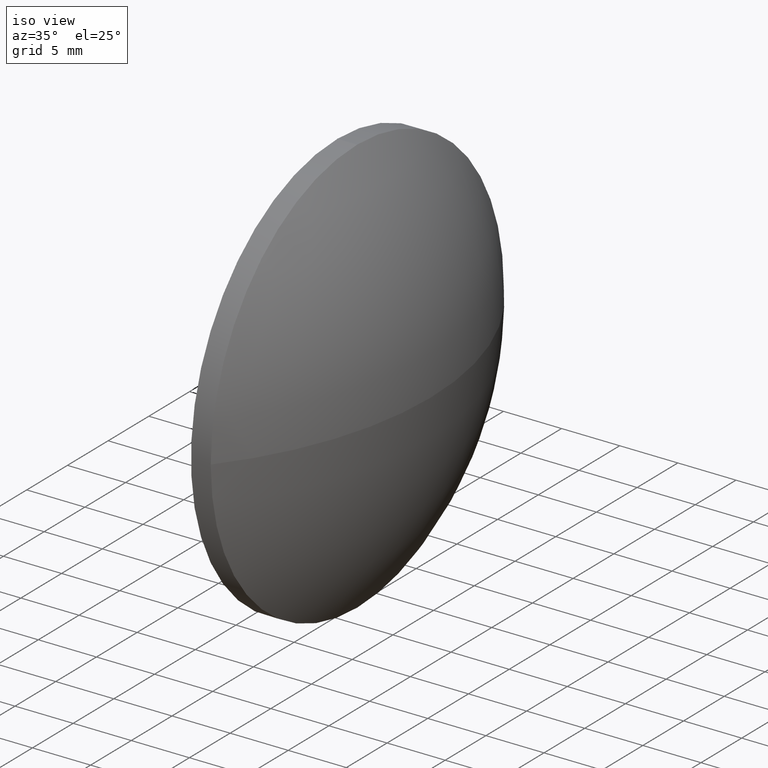
[diagram: clean part render]
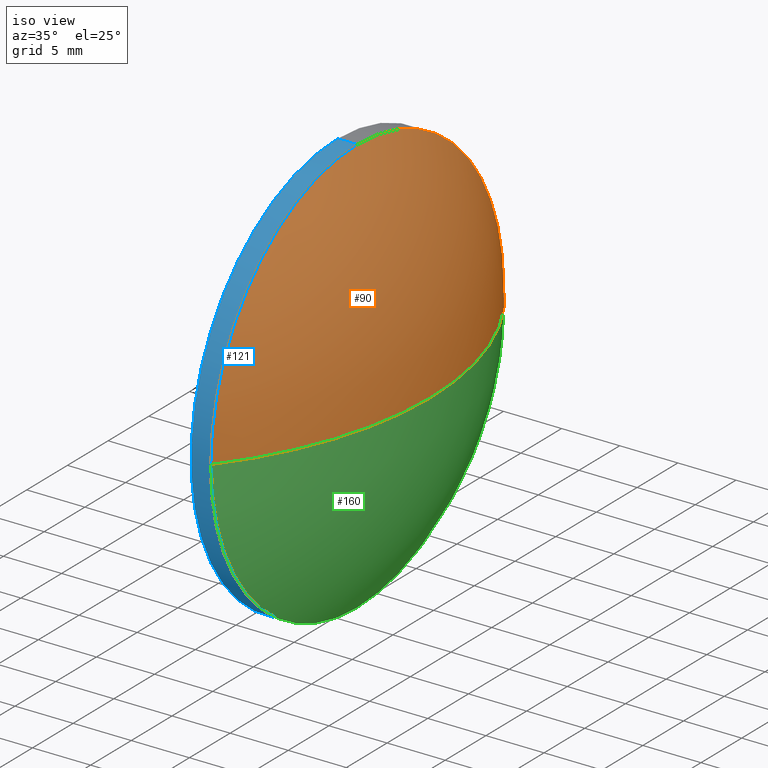
[diagram: same view with three faces highlighted in distinct colors, each labeled with its STEP entity id]
A machine part, iso view with three faces highlighted in distinct colors.
Their STEP definitions:

[orange] entity #90 — the highlighted spherical surface has radius 28.8643 mm.
#2 = DIRECTION ( 'NONE',  ( -0.0000000000000000000, 0.0000000000000000000, 1.000000000000000000 ) ) ;
#3 = EDGE_CURVE ( 'NONE', #108, #89, #120, .T. ) ;
#15 = EDGE_LOOP ( 'NONE', ( #45, #71, #43, #56 ) ) ;
#18 = CARTESIAN_POINT ( 'NONE',  ( 358.7243582634265500, 55.92268159127585400, 0.0000000000000000000 ) ) ;
#20 = CARTESIAN_POINT ( 'NONE',  ( 381.2886439777123000, 55.92268159127587500, 0.0000000000000000000 ) ) ;
#22 = CARTESIAN_POINT ( 'NONE',  ( 381.2886439777123000, 55.92268159127587500, 0.0000000000000000000 ) ) ;
#24 = EDGE_CURVE ( 'NONE', #108, #92, #122, .T. ) ;
#29 = EDGE_CURVE ( 'NONE', #92, #81, #62, .T. ) ;
#30 = DIRECTION ( 'NONE',  ( -0.0000000000000000000, 0.0000000000000000000, -1.000000000000000000 ) ) ;
#31 = DIRECTION ( 'NONE',  ( -1.000000000000000000, -0.0000000000000000000, -0.0000000000000000000 ) ) ;
#33 = CARTESIAN_POINT ( 'NONE',  ( 381.2886439777123000, 55.92268159127587500, 18.00000000000000400 ) ) ;
#36 = DIRECTION ( 'NONE',  ( 0.0000000000000000000, 1.000000000000000000, 0.0000000000000000000 ) ) ;
#42 = AXIS2_PLACEMENT_3D ( 'NONE', #69, #2, #112 ) ;
#43 = ORIENTED_EDGE ( 'NONE', *, *, #87, .F. ) ;
#45 = ORIENTED_EDGE ( 'NONE', *, *, #24, .F. ) ;
#46 = AXIS2_PLACEMENT_3D ( 'NONE', #22, #31, #74 ) ;
#52 = DIRECTION ( 'NONE',  ( 0.0000000000000000000, 0.0000000000000000000, 1.000000000000000000 ) ) ;
#56 = ORIENTED_EDGE ( 'NONE', *, *, #29, .F. ) ;
#62 = CIRCLE ( 'NONE', #67, 18.00000000000000400 ) ;
#67 = AXIS2_PLACEMENT_3D ( 'NONE', #20, #164, #52 ) ;
#68 = CARTESIAN_POINT ( 'NONE',  ( 381.2886439777123000, 37.92268159127586800, -2.204364238465233900E-015 ) ) ;
#69 = CARTESIAN_POINT ( 'NONE',  ( 358.7243582634265500, 55.92268159127585400, 0.0000000000000000000 ) ) ;
#71 = ORIENTED_EDGE ( 'NONE', *, *, #3, .T. ) ;
#74 = DIRECTION ( 'NONE',  ( 0.0000000000000000000, 0.0000000000000000000, 1.000000000000000000 ) ) ;
#80 = DIRECTION ( 'NONE',  ( 0.0000000000000000000, 1.224646799147353200E-016, -1.000000000000000000 ) ) ;
#81 = VERTEX_POINT ( 'NONE', #33 ) ;
#84 = DIRECTION ( 'NONE',  ( 0.0000000000000000000, 1.000000000000000000, 1.224646799147353500E-016 ) ) ;
#87 = EDGE_CURVE ( 'NONE', #81, #89, #105, .T. ) ;
#89 = VERTEX_POINT ( 'NONE', #142 ) ;
#90 = ADVANCED_FACE ( 'NONE', ( #95 ), #144, .T. ) ;
#92 = VERTEX_POINT ( 'NONE', #68 ) ;
#95 = FACE_OUTER_BOUND ( 'NONE', #15, .T. ) ;
#99 = AXIS2_PLACEMENT_3D ( 'NONE', #101, #30, #36 ) ;
#101 = CARTESIAN_POINT ( 'NONE',  ( 358.7243582634265500, 55.92268159127585400, 0.0000000000000000000 ) ) ;
#105 = CIRCLE ( 'NONE', #46, 18.00000000000000400 ) ;
#108 = VERTEX_POINT ( 'NONE', #154 ) ;
#112 = DIRECTION ( 'NONE',  ( 1.000000000000000000, 0.0000000000000000000, 0.0000000000000000000 ) ) ;
#120 = CIRCLE ( 'NONE', #42, 28.86428571428573200 ) ;
#122 = CIRCLE ( 'NONE', #177, 28.86428571428573900 ) ;
#142 = CARTESIAN_POINT ( 'NONE',  ( 381.2886439777123000, 73.92268159127586100, 0.0000000000000000000 ) ) ;
#144 = SPHERICAL_SURFACE ( 'NONE', #99, 28.86428571428574600 ) ;
#154 = CARTESIAN_POINT ( 'NONE',  ( 387.5886439777122500, 55.92268159127585400, 0.0000000000000000000 ) ) ;
#164 = DIRECTION ( 'NONE',  ( -1.000000000000000000, -0.0000000000000000000, -0.0000000000000000000 ) ) ;
#177 = AXIS2_PLACEMENT_3D ( 'NONE', #18, #80, #84 ) ;

[blue] entity #121 — the highlighted cylindrical surface (partial cylindrical patch) has radius 18 mm, axis along (-1, -0, -0).
#8 = CARTESIAN_POINT ( 'NONE',  ( 379.5886439777123100, 55.92268159127587500, 18.00000000000000400 ) ) ;
#10 = ORIENTED_EDGE ( 'NONE', *, *, #29, .T. ) ;
#11 = EDGE_CURVE ( 'NONE', #49, #92, #23, .T. ) ;
#13 = VERTEX_POINT ( 'NONE', #176 ) ;
#14 = LINE ( 'NONE', #131, #106 ) ;
#16 = ORIENTED_EDGE ( 'NONE', *, *, #111, .T. ) ;
#20 = CARTESIAN_POINT ( 'NONE',  ( 381.2886439777123000, 55.92268159127587500, 0.0000000000000000000 ) ) ;
#23 = CIRCLE ( 'NONE', #119, 18.00000000000000400 ) ;
#28 = EDGE_CURVE ( 'NONE', #49, #13, #137, .T. ) ;
#29 = EDGE_CURVE ( 'NONE', #92, #81, #62, .T. ) ;
#33 = CARTESIAN_POINT ( 'NONE',  ( 381.2886439777123000, 55.92268159127587500, 18.00000000000000400 ) ) ;
#35 = CARTESIAN_POINT ( 'NONE',  ( 374.0107276786080800, 55.92268159127587500, 0.0000000000000000000 ) ) ;
#48 = CARTESIAN_POINT ( 'NONE',  ( 381.2886439777123000, 55.92268159127587500, 0.0000000000000000000 ) ) ;
#49 = VERTEX_POINT ( 'NONE', #113 ) ;
#52 = DIRECTION ( 'NONE',  ( 0.0000000000000000000, 0.0000000000000000000, 1.000000000000000000 ) ) ;
#54 = AXIS2_PLACEMENT_3D ( 'NONE', #35, #147, #140 ) ;
#62 = CIRCLE ( 'NONE', #67, 18.00000000000000400 ) ;
#64 = CYLINDRICAL_SURFACE ( 'NONE', #54, 18.00000000000000400 ) ;
#66 = DIRECTION ( 'NONE',  ( 0.0000000000000000000, 0.0000000000000000000, 1.000000000000000000 ) ) ;
#67 = AXIS2_PLACEMENT_3D ( 'NONE', #20, #164, #52 ) ;
#68 = CARTESIAN_POINT ( 'NONE',  ( 381.2886439777123000, 37.92268159127586800, -2.204364238465233900E-015 ) ) ;
#77 = AXIS2_PLACEMENT_3D ( 'NONE', #115, #85, #129 ) ;
#78 = VECTOR ( 'NONE', #83, 1000.000000000000000 ) ;
#79 = EDGE_LOOP ( 'NONE', ( #182, #162, #10, #16, #91 ) ) ;
#81 = VERTEX_POINT ( 'NONE', #33 ) ;
#82 = EDGE_CURVE ( 'NONE', #13, #161, #103, .T. ) ;
#83 = DIRECTION ( 'NONE',  ( -1.000000000000000000, -0.0000000000000000000, -0.0000000000000000000 ) ) ;
#85 = DIRECTION ( 'NONE',  ( -1.000000000000000000, -0.0000000000000000000, -0.0000000000000000000 ) ) ;
#91 = ORIENTED_EDGE ( 'NONE', *, *, #82, .F. ) ;
#92 = VERTEX_POINT ( 'NONE', #68 ) ;
#97 = CARTESIAN_POINT ( 'NONE',  ( 374.0107276786080800, 55.92268159127587500, -18.00000000000000400 ) ) ;
#103 = CIRCLE ( 'NONE', #77, 18.00000000000000400 ) ;
#106 = VECTOR ( 'NONE', #165, 1000.000000000000000 ) ;
#111 = EDGE_CURVE ( 'NONE', #81, #161, #14, .T. ) ;
#113 = CARTESIAN_POINT ( 'NONE',  ( 381.2886439777123000, 55.92268159127587500, -18.00000000000000400 ) ) ;
#115 = CARTESIAN_POINT ( 'NONE',  ( 379.5886439777123100, 55.92268159127587500, 0.0000000000000000000 ) ) ;
#119 = AXIS2_PLACEMENT_3D ( 'NONE', #48, #151, #66 ) ;
#121 = ADVANCED_FACE ( 'NONE', ( #148 ), #64, .T. ) ;
#129 = DIRECTION ( 'NONE',  ( 0.0000000000000000000, 0.0000000000000000000, 1.000000000000000000 ) ) ;
#131 = CARTESIAN_POINT ( 'NONE',  ( 374.0107276786080800, 55.92268159127587500, 18.00000000000000400 ) ) ;
#137 = LINE ( 'NONE', #97, #78 ) ;
#140 = DIRECTION ( 'NONE',  ( 0.0000000000000000000, 0.0000000000000000000, 1.000000000000000000 ) ) ;
#147 = DIRECTION ( 'NONE',  ( -1.000000000000000000, -0.0000000000000000000, -0.0000000000000000000 ) ) ;
#148 = FACE_OUTER_BOUND ( 'NONE', #79, .T. ) ;
#151 = DIRECTION ( 'NONE',  ( -1.000000000000000000, -0.0000000000000000000, -0.0000000000000000000 ) ) ;
#161 = VERTEX_POINT ( 'NONE', #8 ) ;
#162 = ORIENTED_EDGE ( 'NONE', *, *, #11, .T. ) ;
#164 = DIRECTION ( 'NONE',  ( -1.000000000000000000, -0.0000000000000000000, -0.0000000000000000000 ) ) ;
#165 = DIRECTION ( 'NONE',  ( -1.000000000000000000, -0.0000000000000000000, -0.0000000000000000000 ) ) ;
#176 = CARTESIAN_POINT ( 'NONE',  ( 379.5886439777123100, 55.92268159127587500, -18.00000000000000400 ) ) ;
#182 = ORIENTED_EDGE ( 'NONE', *, *, #28, .F. ) ;

[green] entity #160 — the highlighted spherical surface has radius 28.8643 mm.
#2 = DIRECTION ( 'NONE',  ( -0.0000000000000000000, 0.0000000000000000000, 1.000000000000000000 ) ) ;
#3 = EDGE_CURVE ( 'NONE', #108, #89, #120, .T. ) ;
#6 = SPHERICAL_SURFACE ( 'NONE', #127, 28.86428571428574600 ) ;
#11 = EDGE_CURVE ( 'NONE', #49, #92, #23, .T. ) ;
#18 = CARTESIAN_POINT ( 'NONE',  ( 358.7243582634265500, 55.92268159127585400, 0.0000000000000000000 ) ) ;
#23 = CIRCLE ( 'NONE', #119, 18.00000000000000400 ) ;
#24 = EDGE_CURVE ( 'NONE', #108, #92, #122, .T. ) ;
#26 = ORIENTED_EDGE ( 'NONE', *, *, #173, .F. ) ;
#34 = ORIENTED_EDGE ( 'NONE', *, *, #24, .T. ) ;
#41 = AXIS2_PLACEMENT_3D ( 'NONE', #179, #114, #86 ) ;
#42 = AXIS2_PLACEMENT_3D ( 'NONE', #69, #2, #112 ) ;
#48 = CARTESIAN_POINT ( 'NONE',  ( 381.2886439777123000, 55.92268159127587500, 0.0000000000000000000 ) ) ;
#49 = VERTEX_POINT ( 'NONE', #113 ) ;
#66 = DIRECTION ( 'NONE',  ( 0.0000000000000000000, 0.0000000000000000000, 1.000000000000000000 ) ) ;
#68 = CARTESIAN_POINT ( 'NONE',  ( 381.2886439777123000, 37.92268159127586800, -2.204364238465233900E-015 ) ) ;
#69 = CARTESIAN_POINT ( 'NONE',  ( 358.7243582634265500, 55.92268159127585400, 0.0000000000000000000 ) ) ;
#70 = DIRECTION ( 'NONE',  ( 0.0000000000000000000, 1.000000000000000000, 0.0000000000000000000 ) ) ;
#80 = DIRECTION ( 'NONE',  ( 0.0000000000000000000, 1.224646799147353200E-016, -1.000000000000000000 ) ) ;
#84 = DIRECTION ( 'NONE',  ( 0.0000000000000000000, 1.000000000000000000, 1.224646799147353500E-016 ) ) ;
#86 = DIRECTION ( 'NONE',  ( 0.0000000000000000000, 0.0000000000000000000, 1.000000000000000000 ) ) ;
#89 = VERTEX_POINT ( 'NONE', #142 ) ;
#92 = VERTEX_POINT ( 'NONE', #68 ) ;
#107 = FACE_OUTER_BOUND ( 'NONE', #174, .T. ) ;
#108 = VERTEX_POINT ( 'NONE', #154 ) ;
#112 = DIRECTION ( 'NONE',  ( 1.000000000000000000, 0.0000000000000000000, 0.0000000000000000000 ) ) ;
#113 = CARTESIAN_POINT ( 'NONE',  ( 381.2886439777123000, 55.92268159127587500, -18.00000000000000400 ) ) ;
#114 = DIRECTION ( 'NONE',  ( -1.000000000000000000, -0.0000000000000000000, -0.0000000000000000000 ) ) ;
#119 = AXIS2_PLACEMENT_3D ( 'NONE', #48, #151, #66 ) ;
#120 = CIRCLE ( 'NONE', #42, 28.86428571428573200 ) ;
#122 = CIRCLE ( 'NONE', #177, 28.86428571428573900 ) ;
#126 = CARTESIAN_POINT ( 'NONE',  ( 358.7243582634265500, 55.92268159127585400, 0.0000000000000000000 ) ) ;
#127 = AXIS2_PLACEMENT_3D ( 'NONE', #126, #133, #70 ) ;
#133 = DIRECTION ( 'NONE',  ( -0.0000000000000000000, 0.0000000000000000000, -1.000000000000000000 ) ) ;
#136 = ORIENTED_EDGE ( 'NONE', *, *, #11, .F. ) ;
#142 = CARTESIAN_POINT ( 'NONE',  ( 381.2886439777123000, 73.92268159127586100, 0.0000000000000000000 ) ) ;
#151 = DIRECTION ( 'NONE',  ( -1.000000000000000000, -0.0000000000000000000, -0.0000000000000000000 ) ) ;
#154 = CARTESIAN_POINT ( 'NONE',  ( 387.5886439777122500, 55.92268159127585400, 0.0000000000000000000 ) ) ;
#158 = CIRCLE ( 'NONE', #41, 18.00000000000000400 ) ;
#160 = ADVANCED_FACE ( 'NONE', ( #107 ), #6, .T. ) ;
#170 = ORIENTED_EDGE ( 'NONE', *, *, #3, .F. ) ;
#173 = EDGE_CURVE ( 'NONE', #89, #49, #158, .T. ) ;
#174 = EDGE_LOOP ( 'NONE', ( #170, #34, #136, #26 ) ) ;
#177 = AXIS2_PLACEMENT_3D ( 'NONE', #18, #80, #84 ) ;
#179 = CARTESIAN_POINT ( 'NONE',  ( 381.2886439777123000, 55.92268159127587500, 0.0000000000000000000 ) ) ;